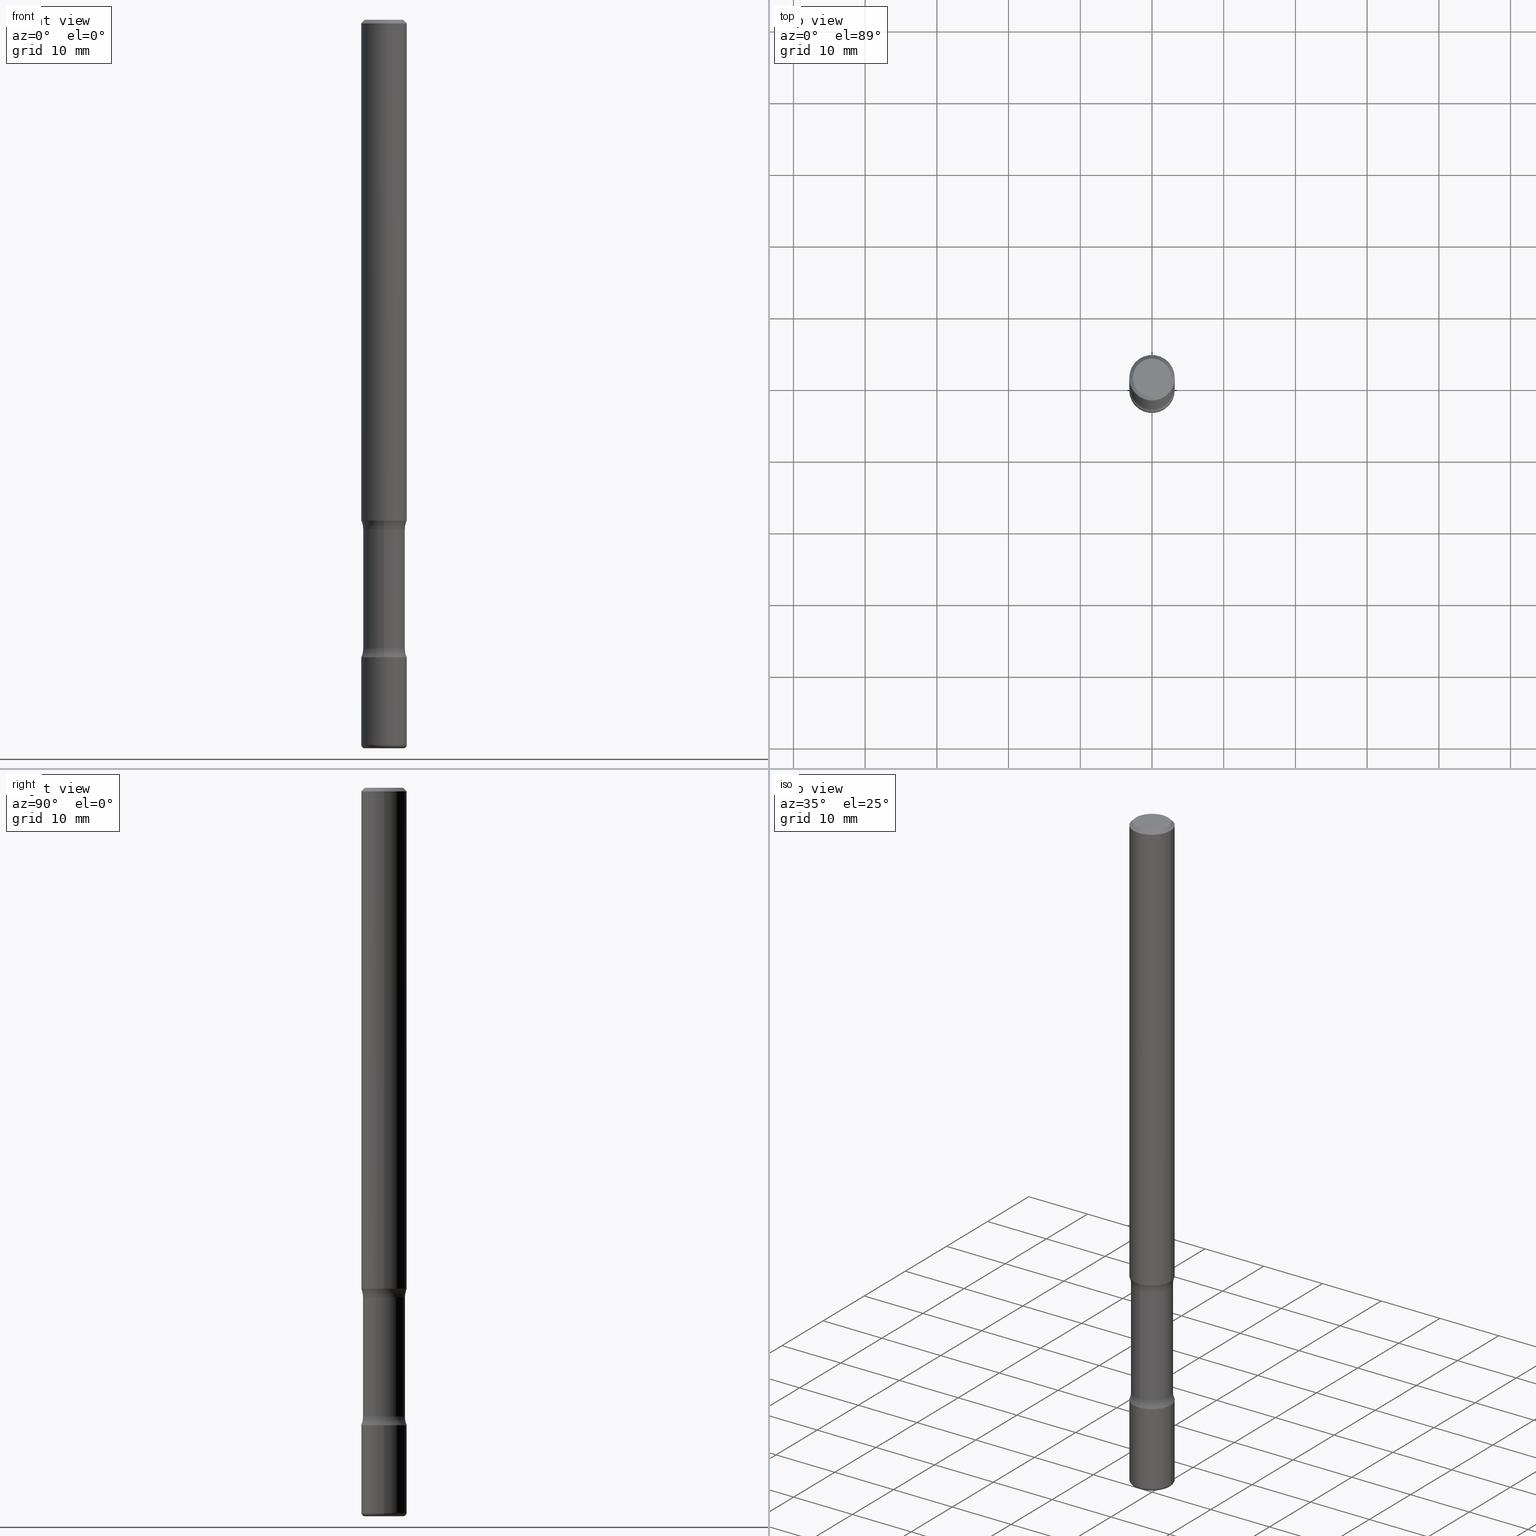
[diagram: canonical four-view strip — front | top / right | iso, engineering-drawing reading convention]
A machine part, canonical four-view strip (front | top / right | iso — engineering-drawing reading convention). The complete STEP part file that produces these views, byte-faithful:
ISO-10303-21;
HEADER;
FILE_DESCRIPTION (( 'STEP AP203' ),
    '1' );
FILE_NAME ('36450.STEP',
    '2024-03-01T23:51:04',
    ( '' ),
    ( '' ),
    'SwSTEP 2.0',
    'SolidWorks 2023',
    '' );
FILE_SCHEMA (( 'CONFIG_CONTROL_DESIGN' ));
ENDSEC;

DATA;
#1 = CARTESIAN_POINT ( 'NONE',  ( -8.232597597325185014E-16, -0.1150000000000099276, -2.798989794855664126 ) ) ;
#2 = DIRECTION ( 'NONE',  ( -1.000000000000000000, 6.982962677686265922E-15, -4.883557194083112901E-29 ) ) ;
#3 = CARTESIAN_POINT ( 'NONE',  ( 8.030407079339889673E-16, 0.1149999999999902073, -2.798989794855665458 ) ) ;
#4 = ADVANCED_FACE ( 'NONE', ( #247 ), #9, .T. ) ;
#5 = PERSON_AND_ORGANIZATION ( #529, #161 ) ;
#6 = DIRECTION ( 'NONE',  ( 2.540850769089485060E-29, -3.354888939159931929E-15, -1.000000000000000000 ) ) ;
#7 = AXIS2_PLACEMENT_3D ( 'NONE', #538, #363, #156 ) ;
#8 = CC_DESIGN_APPROVAL ( #416, ( #260 ) ) ;
#9 = TOROIDAL_SURFACE ( 'NONE', #262, 0.1050000000000001626, 0.01999999999999987205 ) ;
#10 = CC_DESIGN_PERSON_AND_ORGANIZATION_ASSIGNMENT ( #523, #139, ( #180 ) ) ;
#11 = APPROVAL_ROLE ( '' ) ;
#12 = DIRECTION ( 'NONE',  ( -6.982962677686265922E-15, -1.000000000000000000, 0.000000000000000000 ) ) ;
#13 = ADVANCED_FACE ( 'NONE', ( #419 ), #46, .F. ) ;
#14 = ADVANCED_FACE ( 'NONE', ( #505 ), #41, .F. ) ;
#15 = CARTESIAN_POINT ( 'NONE',  ( 6.777978502767415582E-29, -9.868373302474043768E-15, -2.798989794855664570 ) ) ;
#16 = DIRECTION ( 'NONE',  ( 2.540850769089485060E-29, -3.354888939159932323E-15, -1.000000000000000000 ) ) ;
#17 = MANIFOLD_SOLID_BREP ( 'Body-Move/Copy2[4]', #511 ) ;
#18 = AXIS2_PLACEMENT_3D ( 'NONE', #399, #77, #192 ) ;
#19 = CIRCLE ( 'NONE', #302, 0.1050000000000000933 ) ;
#20 = DIRECTION ( 'NONE',  ( 2.540850769089485060E-29, -3.354888939159932323E-15, -1.000000000000000000 ) ) ;
#21 = ORIENTED_EDGE ( 'NONE', *, *, #506, .T. ) ;
#22 = DIRECTION ( 'NONE',  ( 1.000000000000000000, -6.982962677686272233E-15, 0.000000000000000000 ) ) ;
#23 = EDGE_CURVE ( 'NONE', #113, #434, #514, .T. ) ;
#24 = VERTEX_POINT ( 'NONE', #86 ) ;
#25 = DIRECTION ( 'NONE',  ( 2.445468806185136597E-29, -3.491481338843145583E-15, -1.000000000000000000 ) ) ;
#26 = TOROIDAL_SURFACE ( 'NONE', #295, 0.2400000000000000466, 0.1250000000000000555 ) ;
#27 = AXIS2_PLACEMENT_3D ( 'NONE', #501, #327, #333 ) ;
#28 = ADVANCED_FACE ( 'NONE', ( #47 ), #97, .F. ) ;
#29 = EDGE_LOOP ( 'NONE', ( #140, #154, #468, #74 ) ) ;
#30 = AXIS2_PLACEMENT_3D ( 'NONE', #172, #335, #213 ) ;
#31 = DIRECTION ( 'NONE',  ( 2.540850769089485060E-29, -3.354888939159932323E-15, -1.000000000000000000 ) ) ;
#32 = VERTEX_POINT ( 'NONE', #3 ) ;
#33 = CARTESIAN_POINT ( 'NONE',  ( 0.000000000000000000, 0.000000000000000000, 0.000000000000000000 ) ) ;
#34 = ORIENTED_EDGE ( 'NONE', *, *, #157, .T. ) ;
#35 = CARTESIAN_POINT ( 'NONE',  ( -0.1250000000000005829, 8.030407079339238863E-16, -0.02000000000000013572 ) ) ;
#36 = AXIS2_PLACEMENT_3D ( 'NONE', #186, #430, #524 ) ;
#37 = DIRECTION ( 'NONE',  ( 6.982962677686266711E-15, 1.000000000000000000, -3.354888939159932718E-15 ) ) ;
#38 = CIRCLE ( 'NONE', #341, 0.1250000000000009159 ) ;
#39 =( NAMED_UNIT ( * ) PLANE_ANGLE_UNIT ( ) SI_UNIT ( $, .RADIAN. ) );
#40 = AXIS2_PLACEMENT_3D ( 'NONE', #15, #351, #393 ) ;
#41 = PLANE ( 'NONE',  #30 ) ;
#42 = PLANE ( 'NONE',  #432 ) ;
#43 = EDGE_CURVE ( 'NONE', #24, #408, #227, .T. ) ;
#44 = EDGE_LOOP ( 'NONE', ( #373, #478 ) ) ;
#45 = DIRECTION ( 'NONE',  ( -2.445468806185136597E-29, 3.491481338843145583E-15, 1.000000000000000000 ) ) ;
#46 = PLANE ( 'NONE',  #452 ) ;
#47 = FACE_OUTER_BOUND ( 'NONE', #234, .T. ) ;
#48 = APPROVAL_ROLE ( '' ) ;
#49 = DIRECTION ( 'NONE',  ( -2.445468806185136597E-29, 3.491481338843145583E-15, 1.000000000000000000 ) ) ;
#50 = CARTESIAN_POINT ( 'NONE',  ( 0.1250000000000005829, -9.273918764983086878E-16, -0.02000000000000013572 ) ) ;
#51 = DESIGN_CONTEXT ( 'detailed design', #193, 'design' ) ;
#52 = COORDINATED_UNIVERSAL_TIME_OFFSET ( 5, 0, .BEHIND. ) ;
#53 = DIRECTION ( 'NONE',  ( -2.445468806185136597E-29, 3.491481338843145583E-15, 1.000000000000000000 ) ) ;
#54 = CIRCLE ( 'NONE', #268, 0.1249999999999999029 ) ;
#55 = APPROVAL_PERSON_ORGANIZATION ( #528, #370, #11 ) ;
#56 = EDGE_CURVE ( 'NONE', #404, #448, #166, .T. ) ;
#57 = EDGE_CURVE ( 'NONE', #32, #550, #230, .T. ) ;
#58 = SHAPE_DEFINITION_REPRESENTATION ( #560, #284 ) ;
#59 = DIRECTION ( 'NONE',  ( -2.445468806185136877E-29, 3.491481338843145188E-15, 1.000000000000000000 ) ) ;
#60 = APPLICATION_PROTOCOL_DEFINITION ( 'international standard', 'config_control_design', 1994, #193 ) ;
#61 = EDGE_LOOP ( 'NONE', ( #454, #116, #204, #290 ) ) ;
#62 = ADVANCED_FACE ( 'NONE', ( #516 ), #469, .T. ) ;
#63 = DIRECTION ( 'NONE',  ( -1.000000000000000000, 7.105427357600971093E-15, 0.000000000000000000 ) ) ;
#64 = CIRCLE ( 'NONE', #120, 0.1250000000000004163 ) ;
#65 =( GEOMETRIC_REPRESENTATION_CONTEXT ( 3 ) GLOBAL_UNCERTAINTY_ASSIGNED_CONTEXT ( ( #274 ) ) GLOBAL_UNIT_ASSIGNED_CONTEXT ( ( #294, #39, #165 ) ) REPRESENTATION_CONTEXT ( 'NONE', 'WORKASPACE' ) );
#66 = VECTOR ( 'NONE', #409, 39.37007874015748143 ) ;
#67 = ORIENTED_EDGE ( 'NONE', *, *, #553, .T. ) ;
#68 = DIRECTION ( 'NONE',  ( -2.445468806185136877E-29, 3.491481338843145188E-15, 1.000000000000000000 ) ) ;
#69 = ADVANCED_FACE ( 'NONE', ( #383 ), #286, .F. ) ;
#70 = EDGE_LOOP ( 'NONE', ( #21, #463, #241, #366 ) ) ;
#71 = DIRECTION ( 'NONE',  ( 6.982962677686265922E-15, 1.000000000000000000, -4.751039988981326548E-15 ) ) ;
#72 = ORIENTED_EDGE ( 'NONE', *, *, #536, .F. ) ;
#73 = DIRECTION ( 'NONE',  ( -2.445468806185136597E-29, 3.491481338843145583E-15, 1.000000000000000000 ) ) ;
#74 = ORIENTED_EDGE ( 'NONE', *, *, #255, .F. ) ;
#75 = CARTESIAN_POINT ( 'NONE',  ( 8.434665063711427081E-29, -1.205582936505802725E-14, -3.451010205144335874 ) ) ;
#76 = ORIENTED_EDGE ( 'NONE', *, *, #101, .T. ) ;
#77 = DIRECTION ( 'NONE',  ( -2.445468806185136597E-29, 3.491481338843145583E-15, 1.000000000000000000 ) ) ;
#78 = ORIENTED_EDGE ( 'NONE', *, *, #438, .T. ) ;
#79 = DIRECTION ( 'NONE',  ( -6.982962677686265922E-15, -1.000000000000000000, 3.354888939159931929E-15 ) ) ;
#80 = TOROIDAL_SURFACE ( 'NONE', #36, 0.2400000000000000744, 0.1249999999999999029 ) ;
#81 = ORIENTED_EDGE ( 'NONE', *, *, #483, .F. ) ;
#82 = VERTEX_POINT ( 'NONE', #324 ) ;
#83 = CARTESIAN_POINT ( 'NONE',  ( 8.559140821647976968E-29, -1.222018468595100619E-14, -3.499999999999999112 ) ) ;
#84 = ORIENTED_EDGE ( 'NONE', *, *, #221, .T. ) ;
#85 = DIRECTION ( 'NONE',  ( -2.445468806185136597E-29, 3.491481338843145583E-15, 1.000000000000000000 ) ) ;
#86 = CARTESIAN_POINT ( 'NONE',  ( -0.1050000000000000933, -1.311388639586003553E-14, -4.000000000000000000 ) ) ;
#87 = AXIS2_PLACEMENT_3D ( 'NONE', #308, #319, #443 ) ;
#88 = TOROIDAL_SURFACE ( 'NONE', #27, 0.1050000000000001626, 0.01999999999999987205 ) ;
#89 = MECHANICAL_CONTEXT ( 'NONE', #403, 'mechanical' ) ;
#90 = CARTESIAN_POINT ( 'NONE',  ( 7.332110811570615742E-16, 0.1050000000000005235, -3.900823592740843665E-16 ) ) ;
#91 = CARTESIAN_POINT ( 'NONE',  ( 1.148236555768741665E-45, -1.639377487418492057E-31, -4.695363739110452099E-17 ) ) ;
#92 = DATE_AND_TIME ( #338, #415 ) ;
#93 = ORIENTED_EDGE ( 'NONE', *, *, #251, .T. ) ;
#94 = CARTESIAN_POINT ( 'NONE',  ( -8.575622497213560511E-16, -0.1250000000000122957, -3.499999999999999112 ) ) ;
#95 = AXIS2_PLACEMENT_3D ( 'NONE', #273, #112, #239 ) ;
#96 = AXIS2_PLACEMENT_3D ( 'NONE', #83, #374, #422 ) ;
#97 = TOROIDAL_SURFACE ( 'NONE', #407, 0.2400000000000000466, 0.1250000000000000555 ) ;
#98 = CALENDAR_DATE ( 2024, 1, 3 ) ;
#99 = DIRECTION ( 'NONE',  ( -6.982962677686266711E-15, -1.000000000000000000, 3.491481338843145583E-15 ) ) ;
#100 = CARTESIAN_POINT ( 'NONE',  ( 0.1050000000000001626, -1.462930680975277735E-14, -3.979999999999999982 ) ) ;
#101 = EDGE_CURVE ( 'NONE', #124, #82, #343, .T. ) ;
#102 = CYLINDRICAL_SURFACE ( 'NONE', #130, 0.1250000000000007494 ) ;
#103 = AXIS2_PLACEMENT_3D ( 'NONE', #91, #53, #391 ) ;
#104 = AXIS2_PLACEMENT_3D ( 'NONE', #323, #420, #367 ) ;
#105 = CIRCLE ( 'NONE', #522, 0.1150000000000000744 ) ;
#106 = ORIENTED_EDGE ( 'NONE', *, *, #23, .F. ) ;
#107 = CARTESIAN_POINT ( 'NONE',  ( 9.732965848616844417E-29, -1.389609572859572061E-14, -3.979999999999999982 ) ) ;
#108 = EDGE_CURVE ( 'NONE', #82, #109, #54, .T. ) ;
#109 = VERTEX_POINT ( 'NONE', #306 ) ;
#110 = DIRECTION ( 'NONE',  ( 2.540850769089485060E-29, -3.354888939159932323E-15, -1.000000000000000000 ) ) ;
#111 = ORIENTED_EDGE ( 'NONE', *, *, #371, .T. ) ;
#112 = DIRECTION ( 'NONE',  ( -2.445468806185136597E-29, 3.491481338843145583E-15, 1.000000000000000000 ) ) ;
#113 = VERTEX_POINT ( 'NONE', #479 ) ;
#114 = FACE_OUTER_BOUND ( 'NONE', #318, .T. ) ;
#115 = CC_DESIGN_PERSON_AND_ORGANIZATION_ASSIGNMENT ( #342, #256, ( #183 ) ) ;
#116 = ORIENTED_EDGE ( 'NONE', *, *, #321, .F. ) ;
#117 = FACE_OUTER_BOUND ( 'NONE', #164, .T. ) ;
#118 = ORIENTED_EDGE ( 'NONE', *, *, #279, .T. ) ;
#119 = CARTESIAN_POINT ( 'NONE',  ( 6.725039217009124520E-29, -9.601573681818649859E-15, -2.750000000000000000 ) ) ;
#120 = AXIS2_PLACEMENT_3D ( 'NONE', #228, #397, #348 ) ;
#121 = DIRECTION ( 'NONE',  ( -0.7071067811865469066, 2.468850131082251144E-15, -0.7071067811865479058 ) ) ;
#122 = LOCAL_TIME ( 18, 51, 4.000000000000000000, #433 ) ;
#123 = CYLINDRICAL_SURFACE ( 'NONE', #396, 0.1250000000000007494 ) ;
#124 = VERTEX_POINT ( 'NONE', #94 ) ;
#125 = CARTESIAN_POINT ( 'NONE',  ( 0.000000000000000000, 0.000000000000000000, 0.000000000000000000 ) ) ;
#126 = ADVANCED_FACE ( 'NONE', ( #435 ), #485, .T. ) ;
#127 = DIRECTION ( 'NONE',  ( -2.445468806185136877E-29, 3.491481338843145188E-15, 1.000000000000000000 ) ) ;
#128 = DIRECTION ( 'NONE',  ( 1.000000000000000000, -6.982962677686273810E-15, 0.000000000000000000 ) ) ;
#129 = EDGE_CURVE ( 'NONE', #109, #498, #271, .T. ) ;
#130 = AXIS2_PLACEMENT_3D ( 'NONE', #33, #237, #493 ) ;
#131 = COORDINATED_UNIVERSAL_TIME_OFFSET ( 5, 0, .BEHIND. ) ;
#132 = CC_DESIGN_APPROVAL ( #370, ( #180 ) ) ;
#133 = CLOSED_SHELL ( 'NONE', ( #62, #4, #426, #494, #126, #14 ) ) ;
#134 = PLANE ( 'NONE',  #182 ) ;
#135 = CIRCLE ( 'NONE', #7, 0.1250000000000005829 ) ;
#136 = PERSON_AND_ORGANIZATION_ROLE ( 'classification_officer' ) ;
#137 = ORIENTED_EDGE ( 'NONE', *, *, #153, .F. ) ;
#138 = DIRECTION ( 'NONE',  ( 2.540850769089485060E-29, -3.354888939159932323E-15, -1.000000000000000000 ) ) ;
#139 = PERSON_AND_ORGANIZATION_ROLE ( 'design_supplier' ) ;
#140 = ORIENTED_EDGE ( 'NONE', *, *, #240, .F. ) ;
#141 = DIRECTION ( 'NONE',  ( 1.000000000000000000, -6.860497997771530774E-15, 4.842471654074742121E-29 ) ) ;
#142 = DATE_TIME_ROLE ( 'classification_date' ) ;
#143 = FACE_OUTER_BOUND ( 'NONE', #503, .T. ) ;
#144 = PERSON_AND_ORGANIZATION ( #529, #161 ) ;
#145 = DIRECTION ( 'NONE',  ( 6.982962677686265922E-15, 1.000000000000000000, -4.370956789862815627E-15 ) ) ;
#146 = EDGE_CURVE ( 'NONE', #500, #194, #311, .T. ) ;
#147 = DIMENSIONAL_EXPONENTS ( 1.000000000000000000, 0.000000000000000000, 0.000000000000000000, 0.000000000000000000, 0.000000000000000000, 0.000000000000000000, 0.000000000000000000 ) ;
#148 = PLANE ( 'NONE',  #87 ) ;
#149 = EDGE_LOOP ( 'NONE', ( #492, #410 ) ) ;
#150 = CARTESIAN_POINT ( 'NONE',  ( 8.030407079340191413E-16, 0.1149999999999861411, -4.000000000000000888 ) ) ;
#151 = AXIS2_PLACEMENT_3D ( 'NONE', #394, #176, #339 ) ;
#152 = AXIS2_PLACEMENT_3D ( 'NONE', #173, #250, #291 ) ;
#153 = EDGE_CURVE ( 'NONE', #537, #459, #527, .T. ) ;
#154 = ORIENTED_EDGE ( 'NONE', *, *, #196, .T. ) ;
#155 = EDGE_LOOP ( 'NONE', ( #191, #315 ) ) ;
#156 = DIRECTION ( 'NONE',  ( 1.000000000000000000, -6.982962677686267499E-15, 0.000000000000000000 ) ) ;
#157 = EDGE_CURVE ( 'NONE', #32, #500, #105, .T. ) ;
#158 = ORIENTED_EDGE ( 'NONE', *, *, #167, .T. ) ;
#159 = CARTESIAN_POINT ( 'NONE',  ( 0.1050000000000000933, -1.469913643652964065E-14, -4.000000000000000000 ) ) ;
#160 = AXIS2_PLACEMENT_3D ( 'NONE', #100, #99, #267 ) ;
#161 = ORGANIZATION ( 'UNSPECIFIED', 'UNSPECIFIED', '' ) ;
#162 = ORIENTED_EDGE ( 'NONE', *, *, #255, .T. ) ;
#163 = DIRECTION ( 'NONE',  ( 6.982962677686265922E-15, 1.000000000000000000, -4.751039988981325759E-15 ) ) ;
#164 = EDGE_LOOP ( 'NONE', ( #174, #67, #78, #310 ) ) ;
#165 =( NAMED_UNIT ( * ) SI_UNIT ( $, .STERADIAN. ) SOLID_ANGLE_UNIT ( ) );
#166 = LINE ( 'NONE', #328, #497 ) ;
#167 = EDGE_CURVE ( 'NONE', #408, #113, #296, .T. ) ;
#168 = DIRECTION ( 'NONE',  ( -2.445468806185136597E-29, 3.491481338843145583E-15, 1.000000000000000000 ) ) ;
#169 = AXIS2_PLACEMENT_3D ( 'NONE', #235, #20, #455 ) ;
#170 = FACE_OUTER_BOUND ( 'NONE', #412, .T. ) ;
#171 = CLOSED_SHELL ( 'NONE', ( #380, #423, #447, #233, #476, #533 ) ) ;
#172 = CARTESIAN_POINT ( 'NONE',  ( 1.924192066693497233E-28, 3.078164078568847721E-15, -3.499999999999999112 ) ) ;
#173 = CARTESIAN_POINT ( 'NONE',  ( 9.732965848616844417E-29, -1.389609572859572061E-14, -3.979999999999999982 ) ) ;
#174 = ORIENTED_EDGE ( 'NONE', *, *, #317, .F. ) ;
#175 = DATE_AND_TIME ( #98, #510 ) ;
#176 = DIRECTION ( 'NONE',  ( -2.445468806185136597E-29, 3.491481338843145583E-15, 1.000000000000000000 ) ) ;
#177 = EDGE_CURVE ( 'NONE', #124, #498, #358, .T. ) ;
#178 = CIRCLE ( 'NONE', #508, 0.1150000000000000189 ) ;
#179 = APPROVAL_STATUS ( 'not_yet_approved' ) ;
#180 = PRODUCT_DEFINITION_FORMATION_WITH_SPECIFIED_SOURCE ( 'ANY', '', #183, .NOT_KNOWN. ) ;
#181 = CARTESIAN_POINT ( 'NONE',  ( 6.653502744830863453E-29, -9.704017981581060100E-15, -2.750000000000000000 ) ) ;
#182 = AXIS2_PLACEMENT_3D ( 'NONE', #90, #386, #428 ) ;
#183 = PRODUCT ( '36450', '36450', '', ( #89 ) ) ;
#184 = PERSON_AND_ORGANIZATION ( #529, #161 ) ;
#185 = APPROVAL_ROLE ( '' ) ;
#186 = CARTESIAN_POINT ( 'NONE',  ( 8.439337806507041867E-29, -1.204913773141870521E-14, -3.451010205144335874 ) ) ;
#187 = APPROVAL_DATE_TIME ( #175, #377 ) ;
#188 = ORIENTED_EDGE ( 'NONE', *, *, #307, .F. ) ;
#189 = CARTESIAN_POINT ( 'NONE',  ( 6.777978502767415582E-29, -9.868373302474043768E-15, -2.798989794855664570 ) ) ;
#190 = CIRCLE ( 'NONE', #104, 0.1250000000000005829 ) ;
#191 = ORIENTED_EDGE ( 'NONE', *, *, #229, .F. ) ;
#192 = DIRECTION ( 'NONE',  ( 1.000000000000000000, -6.982962677686266711E-15, 4.874400871621214113E-29 ) ) ;
#193 = APPLICATION_CONTEXT ( 'configuration controlled 3d designs of mechanical parts and assemblies' ) ;
#194 = VERTEX_POINT ( 'NONE', #439 ) ;
#195 = DIRECTION ( 'NONE',  ( 2.540850769089485060E-29, -3.354888939159932323E-15, -1.000000000000000000 ) ) ;
#196 = EDGE_CURVE ( 'NONE', #500, #32, #487, .T. ) ;
#197 = ORIENTED_EDGE ( 'NONE', *, *, #251, .F. ) ;
#198 = DIRECTION ( 'NONE',  ( -1.000000000000000000, 6.982962677686265922E-15, 0.000000000000000000 ) ) ;
#199 = CIRCLE ( 'NONE', #103, 0.1050000000000005235 ) ;
#200 = AXIS2_PLACEMENT_3D ( 'NONE', #555, #168, #467 ) ;
#201 = ORIENTED_EDGE ( 'NONE', *, *, #249, .T. ) ;
#202 = ADVANCED_FACE ( 'NONE', ( #143 ), #80, .F. ) ;
#203 = LINE ( 'NONE', #543, #66 ) ;
#204 = ORIENTED_EDGE ( 'NONE', *, *, #56, .T. ) ;
#205 = CARTESIAN_POINT ( 'NONE',  ( 9.829566206192720058E-29, -1.389762915553097550E-14, -4.000000000000000000 ) ) ;
#206 = ORIENTED_EDGE ( 'NONE', *, *, #196, .F. ) ;
#207 = PLANE ( 'NONE',  #521 ) ;
#208 = AXIS2_PLACEMENT_3D ( 'NONE', #299, #304, #63 ) ;
#209 = AXIS2_PLACEMENT_3D ( 'NONE', #376, #413, #163 ) ;
#210 = DIRECTION ( 'NONE',  ( -2.445468806185136597E-29, 3.491481338843145583E-15, 1.000000000000000000 ) ) ;
#211 = VECTOR ( 'NONE', #276, 39.37007874015748854 ) ;
#212 = CARTESIAN_POINT ( 'NONE',  ( 6.773305759971800796E-29, -9.875064936113368968E-15, -2.798989794855664570 ) ) ;
#213 = DIRECTION ( 'NONE',  ( -1.000000000000000000, 6.982962677686265922E-15, -4.876176775795935793E-29 ) ) ;
#214 = CARTESIAN_POINT ( 'NONE',  ( 6.725039217009124520E-29, -9.601573681818649859E-15, -2.750000000000000000 ) ) ;
#215 = CARTESIAN_POINT ( 'NONE',  ( -0.1250000000000001665, -1.216996178757323895E-14, -3.499999999999999112 ) ) ;
#216 = DIRECTION ( 'NONE',  ( 1.000000000000000000, -6.982962677686261189E-15, 4.883557194083111219E-29 ) ) ;
#217 = DIRECTION ( 'NONE',  ( 1.000000000000000000, -6.982962677686266711E-15, 4.876176775795935793E-29 ) ) ;
#218 = DATE_TIME_ROLE ( 'creation_date' ) ;
#219 = EDGE_LOOP ( 'NONE', ( #137, #118, #322, #424 ) ) ;
#220 = CARTESIAN_POINT ( 'NONE',  ( -7.889572697436279993E-16, -0.1150000000000139383, -3.999999999999999556 ) ) ;
#221 = EDGE_CURVE ( 'NONE', #24, #537, #549, .T. ) ;
#222 = AXIS2_PLACEMENT_3D ( 'NONE', #437, #141, #344 ) ;
#223 = DIRECTION ( 'NONE',  ( -1.000000000000000000, 6.982962677686265922E-15, -4.883557194083112901E-29 ) ) ;
#224 = COORDINATED_UNIVERSAL_TIME_OFFSET ( 5, 0, .BEHIND. ) ;
#225 = DIRECTION ( 'NONE',  ( 1.000000000000000000, -6.860497997771530774E-15, 4.842471654074742121E-29 ) ) ;
#226 = DIRECTION ( 'NONE',  ( 6.860497997771530774E-15, 1.000000000000000000, 0.000000000000000000 ) ) ;
#227 = CIRCLE ( 'NONE', #252, 0.1050000000000000933 ) ;
#228 = CARTESIAN_POINT ( 'NONE',  ( 6.653502744830863453E-29, -9.704017981581060100E-15, -2.750000000000000000 ) ) ;
#229 = EDGE_CURVE ( 'NONE', #550, #194, #64, .T. ) ;
#230 = CIRCLE ( 'NONE', #470, 0.1250000000000000555 ) ;
#231 = ORIENTED_EDGE ( 'NONE', *, *, #146, .F. ) ;
#232 = DIRECTION ( 'NONE',  ( 1.000000000000000000, -6.982962677686261977E-15, 0.000000000000000000 ) ) ;
#233 = ADVANCED_FACE ( 'NONE', ( #530 ), #134, .F. ) ;
#234 = EDGE_LOOP ( 'NONE', ( #231, #285, #362, #293 ) ) ;
#235 = CARTESIAN_POINT ( 'NONE',  ( 8.559140821647976968E-29, -1.222018468595100619E-14, -3.499999999999999112 ) ) ;
#236 = ORIENTED_EDGE ( 'NONE', *, *, #43, .T. ) ;
#237 = DIRECTION ( 'NONE',  ( -2.445468806185136597E-29, 3.491481338843145583E-15, 1.000000000000000000 ) ) ;
#238 = VERTEX_POINT ( 'NONE', #50 ) ;
#239 = DIRECTION ( 'NONE',  ( 1.000000000000000000, -6.982962677686269077E-15, 0.000000000000000000 ) ) ;
#240 = EDGE_CURVE ( 'NONE', #500, #498, #258, .T. ) ;
#241 = ORIENTED_EDGE ( 'NONE', *, *, #465, .F. ) ;
#242 = DIRECTION ( 'NONE',  ( 6.982962677686265922E-15, 1.000000000000000000, -4.751039988981325759E-15 ) ) ;
#243 = DIRECTION ( 'NONE',  ( 2.540850769089485060E-29, -3.354888939159932323E-15, -1.000000000000000000 ) ) ;
#244 = LENGTH_MEASURE_WITH_UNIT ( LENGTH_MEASURE( 0.02539999999999999897 ), #460 );
#245 = AXIS2_PLACEMENT_3D ( 'NONE', #181, #138, #475 ) ;
#246 = CONICAL_SURFACE ( 'NONE', #320, 0.1250000000000005829, 0.7853981633974476129 ) ;
#247 = FACE_OUTER_BOUND ( 'NONE', #353, .T. ) ;
#248 = FACE_OUTER_BOUND ( 'NONE', #29, .T. ) ;
#249 = EDGE_CURVE ( 'NONE', #194, #550, #372, .T. ) ;
#250 = DIRECTION ( 'NONE',  ( -2.445468806185136597E-29, 3.491481338843145583E-15, 1.000000000000000000 ) ) ;
#251 = EDGE_CURVE ( 'NONE', #540, #404, #199, .T. ) ;
#252 = AXIS2_PLACEMENT_3D ( 'NONE', #375, #210, #554 ) ;
#253 = ORIENTED_EDGE ( 'NONE', *, *, #167, .F. ) ;
#254 = APPROVAL_DATE_TIME ( #484, #370 ) ;
#255 = EDGE_CURVE ( 'NONE', #498, #109, #178, .T. ) ;
#256 = PERSON_AND_ORGANIZATION_ROLE ( 'design_owner' ) ;
#257 = DIRECTION ( 'NONE',  ( 6.982962677686265922E-15, 1.000000000000000000, -4.751039988981324181E-15 ) ) ;
#258 = LINE ( 'NONE', #220, #431 ) ;
#259 = VECTOR ( 'NONE', #496, 39.37007874015748143 ) ;
#260 = SECURITY_CLASSIFICATION ( '', '', #300 ) ;
#261 = ORIENTED_EDGE ( 'NONE', *, *, #57, .F. ) ;
#262 = AXIS2_PLACEMENT_3D ( 'NONE', #425, #379, #216 ) ;
#263 = CARTESIAN_POINT ( 'NONE',  ( 1.675911042644788774E-15, 0.2399999999999880285, -3.451010205144336762 ) ) ;
#264 = ADVANCED_FACE ( 'NONE', ( #316 ), #26, .F. ) ;
#265 = DATE_AND_TIME ( #481, #122 ) ;
#266 = DIRECTION ( 'NONE',  ( 6.982962677686266711E-15, 1.000000000000000000, -3.354888939159932718E-15 ) ) ;
#267 = DIRECTION ( 'NONE',  ( 1.000000000000000000, -6.982962677686280910E-15, 0.000000000000000000 ) ) ;
#268 = AXIS2_PLACEMENT_3D ( 'NONE', #263, #223, #12 ) ;
#269 = CYLINDRICAL_SURFACE ( 'NONE', #418, 0.1150000000000000328 ) ;
#270 = VECTOR ( 'NONE', #68, 39.37007874015748143 ) ;
#271 = CIRCLE ( 'NONE', #461, 0.1150000000000000189 ) ;
#272 = ORIENTED_EDGE ( 'NONE', *, *, #153, .T. ) ;
#273 = CARTESIAN_POINT ( 'NONE',  ( 8.559140821647976968E-29, -1.222018468595100619E-14, -3.499999999999999112 ) ) ;
#274 = UNCERTAINTY_MEASURE_WITH_UNIT (LENGTH_MEASURE( 1.000000000000000082E-05 ), #294, 'distance_accuracy_value', 'NONE');
#275 = EDGE_LOOP ( 'NONE', ( #490, #421, #547, #450 ) ) ;
#276 = DIRECTION ( 'NONE',  ( 0.7071067811865469066, -7.319954787623252890E-15, -0.7071067811865479058 ) ) ;
#277 = ORIENTED_EDGE ( 'NONE', *, *, #56, .F. ) ;
#278 = CARTESIAN_POINT ( 'NONE',  ( -0.1250000000000009159, -3.947523234597618725E-15, -2.750000000000000000 ) ) ;
#279 = EDGE_CURVE ( 'NONE', #537, #113, #368, .T. ) ;
#280 = ORIENTED_EDGE ( 'NONE', *, *, #240, .T. ) ;
#281 = LINE ( 'NONE', #356, #270 ) ;
#282 = ORIENTED_EDGE ( 'NONE', *, *, #146, .T. ) ;
#283 = FACE_OUTER_BOUND ( 'NONE', #313, .T. ) ;
#284 = ADVANCED_BREP_SHAPE_REPRESENTATION ( '36450', ( #556, #361, #17, #389 ), #65 ) ;
#285 = ORIENTED_EDGE ( 'NONE', *, *, #157, .F. ) ;
#286 = TOROIDAL_SURFACE ( 'NONE', #388, 0.2400000000000000744, 0.1249999999999999029 ) ;
#287 = APPROVAL_PERSON_ORGANIZATION ( #144, #377, #185 ) ;
#288 = ORIENTED_EDGE ( 'NONE', *, *, #506, .F. ) ;
#289 = CARTESIAN_POINT ( 'NONE',  ( 0.1250000000000009159, -1.047444401652944109E-14, -2.750000000000000000 ) ) ;
#290 = ORIENTED_EDGE ( 'NONE', *, *, #325, .T. ) ;
#291 = DIRECTION ( 'NONE',  ( 1.000000000000000000, -6.982962677686272233E-15, 0.000000000000000000 ) ) ;
#292 = CC_DESIGN_DATE_AND_TIME_ASSIGNMENT ( #92, #218, ( #480 ) ) ;
#293 = ORIENTED_EDGE ( 'NONE', *, *, #229, .T. ) ;
#294 =( CONVERSION_BASED_UNIT ( 'INCH', #244 ) LENGTH_UNIT ( ) NAMED_UNIT ( #147 ) );
#295 = AXIS2_PLACEMENT_3D ( 'NONE', #405, #31, #486 ) ;
#296 = CIRCLE ( 'NONE', #160, 0.01999999999999987205 ) ;
#297 = DIRECTION ( 'NONE',  ( 6.982962677686265922E-15, 1.000000000000000000, -4.751039988981326548E-15 ) ) ;
#298 = APPROVAL_STATUS ( 'not_yet_approved' ) ;
#299 = CARTESIAN_POINT ( 'NONE',  ( -0.1050000000000001626, -1.315002585604761554E-14, -3.979999999999999982 ) ) ;
#300 = SECURITY_CLASSIFICATION_LEVEL ( 'unclassified' ) ;
#301 = DIRECTION ( 'NONE',  ( 2.540850769089485060E-29, -3.354888939159932323E-15, -1.000000000000000000 ) ) ;
#302 = AXIS2_PLACEMENT_3D ( 'NONE', #359, #73, #232 ) ;
#303 = PERSON_AND_ORGANIZATION ( #529, #161 ) ;
#304 = DIRECTION ( 'NONE',  ( 7.105427357601001859E-15, 1.000000000000000000, -3.491481338843145583E-15 ) ) ;
#305 = APPROVAL_STATUS ( 'not_yet_approved' ) ;
#306 = CARTESIAN_POINT ( 'NONE',  ( 8.030407079340050404E-16, 0.1149999999999879591, -3.451010205144336762 ) ) ;
#307 = EDGE_CURVE ( 'NONE', #32, #109, #314, .T. ) ;
#308 = CARTESIAN_POINT ( 'NONE',  ( 9.781875224740546387E-29, -1.396592535537258233E-14, -4.000000000000000000 ) ) ;
#309 = PRODUCT_RELATED_PRODUCT_CATEGORY ( 'detail', '', ( #183 ) ) ;
#310 = ORIENTED_EDGE ( 'NONE', *, *, #325, .F. ) ;
#311 = CIRCLE ( 'NONE', #222, 0.1250000000000000555 ) ;
#312 = FACE_OUTER_BOUND ( 'NONE', #61, .T. ) ;
#313 = EDGE_LOOP ( 'NONE', ( #400, #236, #158, #441 ) ) ;
#314 = LINE ( 'NONE', #150, #259 ) ;
#315 = ORIENTED_EDGE ( 'NONE', *, *, #249, .F. ) ;
#316 = FACE_OUTER_BOUND ( 'NONE', #466, .T. ) ;
#317 = EDGE_CURVE ( 'NONE', #357, #448, #203, .T. ) ;
#318 = EDGE_LOOP ( 'NONE', ( #34, #280, #495, #188 ) ) ;
#319 = DIRECTION ( 'NONE',  ( 2.438088387897960049E-29, -3.491481338843145188E-15, -1.000000000000000000 ) ) ;
#320 = AXIS2_PLACEMENT_3D ( 'NONE', #491, #378, #411 ) ;
#321 = EDGE_CURVE ( 'NONE', #404, #540, #330, .T. ) ;
#322 = ORIENTED_EDGE ( 'NONE', *, *, #23, .T. ) ;
#323 = CARTESIAN_POINT ( 'NONE',  ( 4.890937612370306439E-31, -6.982962677686338448E-17, -0.02000000000000013572 ) ) ;
#324 = CARTESIAN_POINT ( 'NONE',  ( 8.728703347108696205E-16, 0.1249999999999878708, -3.499999999999999112 ) ) ;
#325 = EDGE_CURVE ( 'NONE', #448, #238, #135, .T. ) ;
#326 = EDGE_LOOP ( 'NONE', ( #288, #382 ) ) ;
#327 = DIRECTION ( 'NONE',  ( -2.445468806185136597E-29, 3.491481338843145583E-15, 1.000000000000000000 ) ) ;
#328 = CARTESIAN_POINT ( 'NONE',  ( -0.1250000000000005829, 8.030407079339238863E-16, -0.02000000000000013572 ) ) ;
#329 = CARTESIAN_POINT ( 'NONE',  ( -8.232597597324986812E-16, -0.1150000000000120787, -3.451010205144335430 ) ) ;
#330 = CIRCLE ( 'NONE', #18, 0.1050000000000005235 ) ;
#331 = CC_DESIGN_SECURITY_CLASSIFICATION ( #260, ( #180 ) ) ;
#332 = VECTOR ( 'NONE', #127, 39.37007874015748143 ) ;
#333 = DIRECTION ( 'NONE',  ( 1.000000000000000000, -6.982962677686261189E-15, 4.883557194083111219E-29 ) ) ;
#334 = DIRECTION ( 'NONE',  ( -6.982962677686265922E-15, -1.000000000000000000, 0.000000000000000000 ) ) ;
#335 = DIRECTION ( 'NONE',  ( 2.438088387897960049E-29, -3.491481338843145188E-15, -1.000000000000000000 ) ) ;
#336 = CARTESIAN_POINT ( 'NONE',  ( -0.1250000000000000555, -1.300791730889559380E-14, -3.979999999999999982 ) ) ;
#337 = DIRECTION ( 'NONE',  ( 2.540850769089485060E-29, -3.354888939159931929E-15, -1.000000000000000000 ) ) ;
#338 = CALENDAR_DATE ( 2024, 1, 3 ) ;
#339 = DIRECTION ( 'NONE',  ( 1.000000000000000000, -6.982962677686266711E-15, 4.876176775795935793E-29 ) ) ;
#340 = AXIS2_PLACEMENT_3D ( 'NONE', #346, #532, #145 ) ;
#341 = AXIS2_PLACEMENT_3D ( 'NONE', #119, #45, #128 ) ;
#342 = PERSON_AND_ORGANIZATION ( #529, #161 ) ;
#343 = CIRCLE ( 'NONE', #340, 0.1250000000000001665 ) ;
#344 = DIRECTION ( 'NONE',  ( 6.860497997771530774E-15, 1.000000000000000000, 0.000000000000000000 ) ) ;
#345 = CALENDAR_DATE ( 2024, 1, 3 ) ;
#346 = CARTESIAN_POINT ( 'NONE',  ( 8.559140821647976968E-29, -1.222018468595100619E-14, -3.499999999999999112 ) ) ;
#347 = CARTESIAN_POINT ( 'NONE',  ( 0.000000000000000000, 0.000000000000000000, 0.000000000000000000 ) ) ;
#348 = DIRECTION ( 'NONE',  ( 6.982962677686267499E-15, 1.000000000000000000, -4.370956789862806950E-15 ) ) ;
#349 = EDGE_CURVE ( 'NONE', #459, #434, #414, .T. ) ;
#350 = DIRECTION ( 'NONE',  ( 0.000000000000000000, 0.000000000000000000, 1.000000000000000000 ) ) ;
#351 = DIRECTION ( 'NONE',  ( 2.540850769089485060E-29, -3.354888939159932323E-15, -1.000000000000000000 ) ) ;
#352 = CC_DESIGN_DATE_AND_TIME_ASSIGNMENT ( #474, #142, ( #260 ) ) ;
#353 = EDGE_LOOP ( 'NONE', ( #398, #84, #81, #253 ) ) ;
#354 = CARTESIAN_POINT ( 'NONE',  ( 4.890937612370306439E-31, -6.982962677686338448E-17, -0.02000000000000013572 ) ) ;
#355 = EDGE_LOOP ( 'NONE', ( #385, #93 ) ) ;
#356 = CARTESIAN_POINT ( 'NONE',  ( 0.1250000000000007494, -8.728703347107885650E-16, 6.095220969744956175E-30 ) ) ;
#357 = VERTEX_POINT ( 'NONE', #278 ) ;
#358 = CIRCLE ( 'NONE', #539, 0.1249999999999999029 ) ;
#359 = CARTESIAN_POINT ( 'NONE',  ( 9.781875224740546387E-29, -1.396592535537258233E-14, -4.000000000000000000 ) ) ;
#360 = LOCAL_TIME ( 18, 51, 4.000000000000000000, #224 ) ;
#361 = MANIFOLD_SOLID_BREP ( 'Body-Move/Copy2[2]', #171 ) ;
#362 = ORIENTED_EDGE ( 'NONE', *, *, #57, .T. ) ;
#363 = DIRECTION ( 'NONE',  ( -2.445468806185136597E-29, 3.491481338843145583E-15, 1.000000000000000000 ) ) ;
#364 = ORIENTED_EDGE ( 'NONE', *, *, #401, .T. ) ;
#365 = CARTESIAN_POINT ( 'NONE',  ( 0.1250000000000005829, -9.273918764983086878E-16, -0.02000000000000013572 ) ) ;
#366 = ORIENTED_EDGE ( 'NONE', *, *, #438, .F. ) ;
#367 = DIRECTION ( 'NONE',  ( 1.000000000000000000, -6.982962677686267499E-15, 0.000000000000000000 ) ) ;
#368 = CIRCLE ( 'NONE', #472, 0.1250000000000001110 ) ;
#369 = LOCAL_TIME ( 18, 51, 4.000000000000000000, #131 ) ;
#370 = APPROVAL ( #298, 'UNSPECIFIED' ) ;
#371 = EDGE_CURVE ( 'NONE', #82, #124, #442, .T. ) ;
#372 = CIRCLE ( 'NONE', #245, 0.1250000000000004163 ) ;
#373 = ORIENTED_EDGE ( 'NONE', *, *, #536, .T. ) ;
#374 = DIRECTION ( 'NONE',  ( -2.445468806185136597E-29, 3.491481338843145583E-15, 1.000000000000000000 ) ) ;
#375 = CARTESIAN_POINT ( 'NONE',  ( 9.781875224740546387E-29, -1.396592535537258233E-14, -4.000000000000000000 ) ) ;
#376 = CARTESIAN_POINT ( 'NONE',  ( 9.829566206192720058E-29, -1.389762915553097550E-14, -4.000000000000000000 ) ) ;
#377 = APPROVAL ( #305, 'UNSPECIFIED' ) ;
#378 = DIRECTION ( 'NONE',  ( 2.445468806185136597E-29, -3.491481338843145583E-15, -1.000000000000000000 ) ) ;
#379 = DIRECTION ( 'NONE',  ( -2.445468806185136597E-29, 3.491481338843145583E-15, 1.000000000000000000 ) ) ;
#380 = ADVANCED_FACE ( 'NONE', ( #451 ), #102, .T. ) ;
#381 = DIRECTION ( 'NONE',  ( -2.540850769089485060E-29, 3.354888939159931929E-15, 1.000000000000000000 ) ) ;
#382 = ORIENTED_EDGE ( 'NONE', *, *, #553, .F. ) ;
#383 = FACE_OUTER_BOUND ( 'NONE', #275, .T. ) ;
#384 = APPLICATION_PROTOCOL_DEFINITION ( 'international standard', 'config_control_design', 1994, #403 ) ;
#385 = ORIENTED_EDGE ( 'NONE', *, *, #321, .T. ) ;
#386 = DIRECTION ( 'NONE',  ( 2.438088387897960049E-29, -3.491481338843145188E-15, -1.000000000000000000 ) ) ;
#387 = ADVANCED_FACE ( 'NONE', ( #114 ), #269, .T. ) ;
#388 = AXIS2_PLACEMENT_3D ( 'NONE', #552, #502, #266 ) ;
#389 = AXIS2_PLACEMENT_3D ( 'NONE', #347, #350, #429 ) ;
#390 = PERSON_AND_ORGANIZATION_ROLE ( 'creator' ) ;
#391 = DIRECTION ( 'NONE',  ( 1.000000000000000000, -6.982962677686266711E-15, 4.874400871621214113E-29 ) ) ;
#392 = PERSON_AND_ORGANIZATION_ROLE ( 'creator' ) ;
#393 = DIRECTION ( 'NONE',  ( 6.982962677686265922E-15, 1.000000000000000000, -4.751039988981324181E-15 ) ) ;
#394 = CARTESIAN_POINT ( 'NONE',  ( 0.000000000000000000, 0.000000000000000000, 0.000000000000000000 ) ) ;
#395 = CONICAL_SURFACE ( 'NONE', #440, 0.1250000000000005829, 0.7853981633974476129 ) ;
#396 = AXIS2_PLACEMENT_3D ( 'NONE', #125, #85, #464 ) ;
#397 = DIRECTION ( 'NONE',  ( 2.540850769089485060E-29, -3.354888939159932323E-15, -1.000000000000000000 ) ) ;
#398 = ORIENTED_EDGE ( 'NONE', *, *, #444, .T. ) ;
#399 = CARTESIAN_POINT ( 'NONE',  ( 1.148236555768741665E-45, -1.639377487418492057E-31, -4.695363739110452099E-17 ) ) ;
#400 = ORIENTED_EDGE ( 'NONE', *, *, #221, .F. ) ;
#401 = EDGE_CURVE ( 'NONE', #540, #238, #446, .T. ) ;
#402 = CC_DESIGN_PERSON_AND_ORGANIZATION_ASSIGNMENT ( #518, #392, ( #180 ) ) ;
#403 = APPLICATION_CONTEXT ( 'configuration controlled 3d designs of mechanical parts and assemblies' ) ;
#404 = VERTEX_POINT ( 'NONE', #545 ) ;
#405 = CARTESIAN_POINT ( 'NONE',  ( 6.773305759971800796E-29, -9.875064936113368968E-15, -2.798989794855664570 ) ) ;
#406 = CIRCLE ( 'NONE', #152, 0.1250000000000001110 ) ;
#407 = AXIS2_PLACEMENT_3D ( 'NONE', #212, #243, #37 ) ;
#408 = VERTEX_POINT ( 'NONE', #159 ) ;
#409 = DIRECTION ( 'NONE',  ( -2.445468806185136877E-29, 3.491481338843145188E-15, 1.000000000000000000 ) ) ;
#410 = ORIENTED_EDGE ( 'NONE', *, *, #43, .F. ) ;
#411 = DIRECTION ( 'NONE',  ( -1.000000000000000000, 6.982962677686265922E-15, 0.000000000000000000 ) ) ;
#412 = EDGE_LOOP ( 'NONE', ( #111, #76 ) ) ;
#413 = DIRECTION ( 'NONE',  ( 2.540850769089485060E-29, -3.354888939159932323E-15, -1.000000000000000000 ) ) ;
#414 = CIRCLE ( 'NONE', #95, 0.1250000000000001665 ) ;
#415 = LOCAL_TIME ( 18, 51, 4.000000000000000000, #525 ) ;
#416 = APPROVAL ( #179, 'UNSPECIFIED' ) ;
#417 = CARTESIAN_POINT ( 'NONE',  ( 1.675911042644771813E-15, 0.2399999999999901656, -2.798989794855665458 ) ) ;
#418 = AXIS2_PLACEMENT_3D ( 'NONE', #205, #195, #242 ) ;
#419 = FACE_OUTER_BOUND ( 'NONE', #155, .T. ) ;
#420 = DIRECTION ( 'NONE',  ( -2.445468806185136597E-29, 3.491481338843145583E-15, 1.000000000000000000 ) ) ;
#421 = ORIENTED_EDGE ( 'NONE', *, *, #371, .F. ) ;
#422 = DIRECTION ( 'NONE',  ( 1.000000000000000000, -6.982962677686269077E-15, 0.000000000000000000 ) ) ;
#423 = ADVANCED_FACE ( 'NONE', ( #449 ), #395, .T. ) ;
#424 = ORIENTED_EDGE ( 'NONE', *, *, #349, .F. ) ;
#425 = CARTESIAN_POINT ( 'NONE',  ( 9.732965848616844417E-29, -1.389609572859572061E-14, -3.979999999999999982 ) ) ;
#426 = ADVANCED_FACE ( 'NONE', ( #535 ), #148, .T. ) ;
#427 = CARTESIAN_POINT ( 'NONE',  ( 0.000000000000000000, 0.000000000000000000, 0.000000000000000000 ) ) ;
#428 = DIRECTION ( 'NONE',  ( -1.000000000000000000, 6.982962677686265922E-15, -4.876176775795935793E-29 ) ) ;
#429 = DIRECTION ( 'NONE',  ( 1.000000000000000000, 0.000000000000000000, 0.000000000000000000 ) ) ;
#430 = DIRECTION ( 'NONE',  ( 2.540850769089485060E-29, -3.354888939159932323E-15, -1.000000000000000000 ) ) ;
#431 = VECTOR ( 'NONE', #6, 39.37007874015748143 ) ;
#432 = AXIS2_PLACEMENT_3D ( 'NONE', #548, #381, #79 ) ;
#433 = COORDINATED_UNIVERSAL_TIME_OFFSET ( 5, 0, .BEHIND. ) ;
#434 = VERTEX_POINT ( 'NONE', #499 ) ;
#435 = FACE_OUTER_BOUND ( 'NONE', #219, .T. ) ;
#436 = APPROVAL_DATE_TIME ( #265, #416 ) ;
#437 = CARTESIAN_POINT ( 'NONE',  ( -1.646519519465099717E-15, -0.2400000000000098999, -2.798989794855664126 ) ) ;
#438 = EDGE_CURVE ( 'NONE', #534, #238, #281, .T. ) ;
#439 = CARTESIAN_POINT ( 'NONE',  ( -8.575622497213780406E-16, -0.1250000000000101863, -2.750000000000000000 ) ) ;
#440 = AXIS2_PLACEMENT_3D ( 'NONE', #354, #25, #198 ) ;
#441 = ORIENTED_EDGE ( 'NONE', *, *, #279, .F. ) ;
#442 = CIRCLE ( 'NONE', #169, 0.1250000000000001665 ) ;
#443 = DIRECTION ( 'NONE',  ( -1.000000000000000000, 6.982962677686265922E-15, -4.876176775795935793E-29 ) ) ;
#444 = EDGE_CURVE ( 'NONE', #408, #24, #19, .T. ) ;
#445 = EDGE_LOOP ( 'NONE', ( #542, #272, #72, #106 ) ) ;
#446 = LINE ( 'NONE', #365, #211 ) ;
#447 = ADVANCED_FACE ( 'NONE', ( #312 ), #246, .T. ) ;
#448 = VERTEX_POINT ( 'NONE', #35 ) ;
#449 = FACE_OUTER_BOUND ( 'NONE', #544, .T. ) ;
#450 = ORIENTED_EDGE ( 'NONE', *, *, #129, .T. ) ;
#451 = FACE_OUTER_BOUND ( 'NONE', #70, .T. ) ;
#452 = AXIS2_PLACEMENT_3D ( 'NONE', #214, #337, #559 ) ;
#453 = CC_DESIGN_PERSON_AND_ORGANIZATION_ASSIGNMENT ( #303, #136, ( #260 ) ) ;
#454 = ORIENTED_EDGE ( 'NONE', *, *, #401, .F. ) ;
#455 = DIRECTION ( 'NONE',  ( 6.982962677686265922E-15, 1.000000000000000000, -4.370956789862815627E-15 ) ) ;
#456 = ADVANCED_FACE ( 'NONE', ( #248 ), #504, .T. ) ;
#457 = CARTESIAN_POINT ( 'NONE',  ( 0.1250000000000001388, -8.728703347107843249E-16, 6.095220969744926748E-30 ) ) ;
#458 = CARTESIAN_POINT ( 'NONE',  ( 0.1050000000000005235, -8.238720831321616087E-16, -4.695363739109907908E-17 ) ) ;
#459 = VERTEX_POINT ( 'NONE', #215 ) ;
#460 =( LENGTH_UNIT ( ) NAMED_UNIT ( * ) SI_UNIT ( $, .METRE. ) );
#461 = AXIS2_PLACEMENT_3D ( 'NONE', #482, #16, #297 ) ;
#462 = CIRCLE ( 'NONE', #96, 0.1250000000000001665 ) ;
#463 = ORIENTED_EDGE ( 'NONE', *, *, #317, .T. ) ;
#464 = DIRECTION ( 'NONE',  ( 1.000000000000000000, -6.982962677686266711E-15, 4.876176775795935793E-29 ) ) ;
#465 = EDGE_CURVE ( 'NONE', #238, #448, #190, .T. ) ;
#466 = EDGE_LOOP ( 'NONE', ( #206, #282, #201, #261 ) ) ;
#467 = DIRECTION ( 'NONE',  ( 1.000000000000000000, -6.982962677686273810E-15, 0.000000000000000000 ) ) ;
#468 = ORIENTED_EDGE ( 'NONE', *, *, #307, .T. ) ;
#469 = CYLINDRICAL_SURFACE ( 'NONE', #520, 0.1250000000000001388 ) ;
#470 = AXIS2_PLACEMENT_3D ( 'NONE', #417, #2, #334 ) ;
#471 = CC_DESIGN_APPROVAL ( #377, ( #480 ) ) ;
#472 = AXIS2_PLACEMENT_3D ( 'NONE', #107, #541, #22 ) ;
#473 = CARTESIAN_POINT ( 'NONE',  ( -1.646519519465083348E-15, -0.2400000000000121203, -3.451010205144335430 ) ) ;
#474 = DATE_AND_TIME ( #477, #369 ) ;
#475 = DIRECTION ( 'NONE',  ( 6.982962677686267499E-15, 1.000000000000000000, -4.370956789862806950E-15 ) ) ;
#476 = ADVANCED_FACE ( 'NONE', ( #507 ), #207, .F. ) ;
#477 = CALENDAR_DATE ( 2024, 1, 3 ) ;
#478 = ORIENTED_EDGE ( 'NONE', *, *, #349, .T. ) ;
#479 = CARTESIAN_POINT ( 'NONE',  ( 0.1250000000000000555, -1.476896606330650395E-14, -3.979999999999999982 ) ) ;
#480 = PRODUCT_DEFINITION ( 'UNKNOWN', '', #180, #51 ) ;
#481 = CALENDAR_DATE ( 2024, 1, 3 ) ;
#482 = CARTESIAN_POINT ( 'NONE',  ( 8.434665063711427081E-29, -1.205582936505802725E-14, -3.451010205144335874 ) ) ;
#483 = EDGE_CURVE ( 'NONE', #113, #537, #406, .T. ) ;
#484 = DATE_AND_TIME ( #345, #360 ) ;
#485 = CYLINDRICAL_SURFACE ( 'NONE', #151, 0.1250000000000001388 ) ;
#486 = DIRECTION ( 'NONE',  ( 6.982962677686266711E-15, 1.000000000000000000, -3.354888939159932718E-15 ) ) ;
#487 = CIRCLE ( 'NONE', #40, 0.1150000000000000744 ) ;
#488 = APPROVAL_PERSON_ORGANIZATION ( #5, #416, #48 ) ;
#489 = ADVANCED_FACE ( 'NONE', ( #170 ), #42, .F. ) ;
#490 = ORIENTED_EDGE ( 'NONE', *, *, #177, .F. ) ;
#491 = CARTESIAN_POINT ( 'NONE',  ( 4.890937612370306439E-31, -6.982962677686338448E-17, -0.02000000000000013572 ) ) ;
#492 = ORIENTED_EDGE ( 'NONE', *, *, #444, .F. ) ;
#493 = DIRECTION ( 'NONE',  ( 1.000000000000000000, -6.982962677686266711E-15, 4.876176775795935793E-29 ) ) ;
#494 = ADVANCED_FACE ( 'NONE', ( #283 ), #88, .T. ) ;
#495 = ORIENTED_EDGE ( 'NONE', *, *, #129, .F. ) ;
#496 = DIRECTION ( 'NONE',  ( 2.540850769089485060E-29, -3.354888939159931929E-15, -1.000000000000000000 ) ) ;
#497 = VECTOR ( 'NONE', #121, 39.37007874015748854 ) ;
#498 = VERTEX_POINT ( 'NONE', #329 ) ;
#499 = CARTESIAN_POINT ( 'NONE',  ( 0.1250000000000001665, -1.309305502066179110E-14, -3.499999999999999112 ) ) ;
#500 = VERTEX_POINT ( 'NONE', #1 ) ;
#501 = CARTESIAN_POINT ( 'NONE',  ( 9.732965848616844417E-29, -1.389609572859572061E-14, -3.979999999999999982 ) ) ;
#502 = DIRECTION ( 'NONE',  ( 2.540850769089485060E-29, -3.354888939159932323E-15, -1.000000000000000000 ) ) ;
#503 = EDGE_LOOP ( 'NONE', ( #526, #517, #162, #531 ) ) ;
#504 = CYLINDRICAL_SURFACE ( 'NONE', #209, 0.1150000000000000328 ) ;
#505 = FACE_OUTER_BOUND ( 'NONE', #44, .T. ) ;
#506 = EDGE_CURVE ( 'NONE', #534, #357, #558, .T. ) ;
#507 = FACE_OUTER_BOUND ( 'NONE', #326, .T. ) ;
#508 = AXIS2_PLACEMENT_3D ( 'NONE', #75, #110, #71 ) ;
#509 = CC_DESIGN_PERSON_AND_ORGANIZATION_ASSIGNMENT ( #184, #390, ( #480 ) ) ;
#510 = LOCAL_TIME ( 18, 51, 4.000000000000000000, #52 ) ;
#511 = CLOSED_SHELL ( 'NONE', ( #387, #202, #264, #28, #13, #489, #69, #456 ) ) ;
#512 = ORIENTED_EDGE ( 'NONE', *, *, #465, .T. ) ;
#513 = DIRECTION ( 'NONE',  ( 1.000000000000000000, -6.982962677686265922E-15, 4.876176775795935793E-29 ) ) ;
#514 = LINE ( 'NONE', #457, #332 ) ;
#515 = CARTESIAN_POINT ( 'NONE',  ( 8.728703347108529558E-16, 0.1249999999999907851, -2.750000000000000000 ) ) ;
#516 = FACE_OUTER_BOUND ( 'NONE', #445, .T. ) ;
#517 = ORIENTED_EDGE ( 'NONE', *, *, #177, .T. ) ;
#518 = PERSON_AND_ORGANIZATION ( #529, #161 ) ;
#519 = CARTESIAN_POINT ( 'NONE',  ( -0.1250000000000001388, 8.881784197001262184E-16, -6.148668862818638533E-30 ) ) ;
#520 = AXIS2_PLACEMENT_3D ( 'NONE', #427, #49, #217 ) ;
#521 = AXIS2_PLACEMENT_3D ( 'NONE', #551, #557, #513 ) ;
#522 = AXIS2_PLACEMENT_3D ( 'NONE', #189, #301, #257 ) ;
#523 = PERSON_AND_ORGANIZATION ( #529, #161 ) ;
#524 = DIRECTION ( 'NONE',  ( 6.982962677686266711E-15, 1.000000000000000000, -3.354888939159932718E-15 ) ) ;
#525 = COORDINATED_UNIVERSAL_TIME_OFFSET ( 5, 0, .BEHIND. ) ;
#526 = ORIENTED_EDGE ( 'NONE', *, *, #101, .F. ) ;
#527 = LINE ( 'NONE', #519, #546 ) ;
#528 = PERSON_AND_ORGANIZATION ( #529, #161 ) ;
#529 = PERSON ( 'UNSPECIFIED', 'UNSPECIFIED', 'UNSPECIFIED', ('UNSPECIFIED'), ('UNSPECIFIED'), ('UNSPECIFIED') ) ;
#530 = FACE_OUTER_BOUND ( 'NONE', #355, .T. ) ;
#531 = ORIENTED_EDGE ( 'NONE', *, *, #108, .F. ) ;
#532 = DIRECTION ( 'NONE',  ( 2.540850769089485060E-29, -3.354888939159932323E-15, -1.000000000000000000 ) ) ;
#533 = ADVANCED_FACE ( 'NONE', ( #117 ), #123, .T. ) ;
#534 = VERTEX_POINT ( 'NONE', #289 ) ;
#535 = FACE_OUTER_BOUND ( 'NONE', #149, .T. ) ;
#536 = EDGE_CURVE ( 'NONE', #434, #459, #462, .T. ) ;
#537 = VERTEX_POINT ( 'NONE', #336 ) ;
#538 = CARTESIAN_POINT ( 'NONE',  ( 4.890937612370306439E-31, -6.982962677686338448E-17, -0.02000000000000013572 ) ) ;
#539 = AXIS2_PLACEMENT_3D ( 'NONE', #473, #225, #226 ) ;
#540 = VERTEX_POINT ( 'NONE', #458 ) ;
#541 = DIRECTION ( 'NONE',  ( -2.445468806185136597E-29, 3.491481338843145583E-15, 1.000000000000000000 ) ) ;
#542 = ORIENTED_EDGE ( 'NONE', *, *, #483, .T. ) ;
#543 = CARTESIAN_POINT ( 'NONE',  ( -0.1250000000000007494, 8.881784197001305572E-16, -6.148668862818669362E-30 ) ) ;
#544 = EDGE_LOOP ( 'NONE', ( #197, #364, #512, #277 ) ) ;
#545 = CARTESIAN_POINT ( 'NONE',  ( -0.1050000000000005235, 7.681258945454927303E-16, -4.695363739110977184E-17 ) ) ;
#546 = VECTOR ( 'NONE', #59, 39.37007874015748143 ) ;
#547 = ORIENTED_EDGE ( 'NONE', *, *, #108, .T. ) ;
#548 = CARTESIAN_POINT ( 'NONE',  ( 1.924192066693497233E-28, 3.078164078568847721E-15, -3.499999999999999112 ) ) ;
#549 = CIRCLE ( 'NONE', #208, 0.01999999999999987205 ) ;
#550 = VERTEX_POINT ( 'NONE', #515 ) ;
#551 = CARTESIAN_POINT ( 'NONE',  ( 6.725039217009124520E-29, -9.601573681818649859E-15, -2.750000000000000000 ) ) ;
#552 = CARTESIAN_POINT ( 'NONE',  ( 8.439337806507041867E-29, -1.204913773141870521E-14, -3.451010205144335874 ) ) ;
#553 = EDGE_CURVE ( 'NONE', #357, #534, #38, .T. ) ;
#554 = DIRECTION ( 'NONE',  ( 1.000000000000000000, -6.982962677686261977E-15, 0.000000000000000000 ) ) ;
#555 = CARTESIAN_POINT ( 'NONE',  ( 6.725039217009124520E-29, -9.601573681818649859E-15, -2.750000000000000000 ) ) ;
#556 = MANIFOLD_SOLID_BREP ( 'Body-Move/Copy2[1]', #133 ) ;
#557 = DIRECTION ( 'NONE',  ( -2.438088387897960049E-29, 3.491481338843145188E-15, 1.000000000000000000 ) ) ;
#558 = CIRCLE ( 'NONE', #200, 0.1250000000000009159 ) ;
#559 = DIRECTION ( 'NONE',  ( 6.982962677686265922E-15, 1.000000000000000000, -3.354888939159931929E-15 ) ) ;
#560 = PRODUCT_DEFINITION_SHAPE ( 'NONE', 'NONE',  #480 ) ;
ENDSEC;
END-ISO-10303-21;
